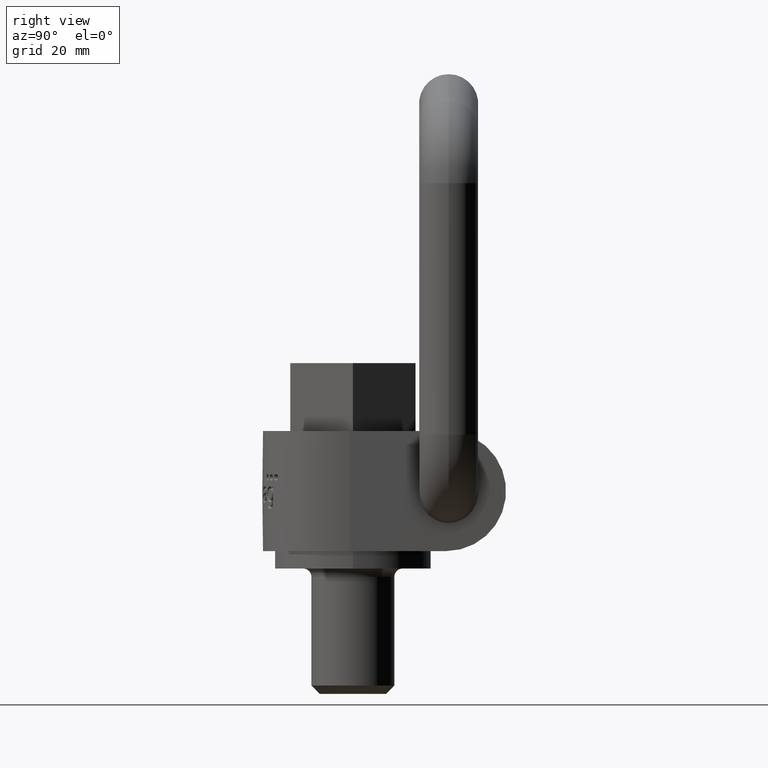
[diagram: clean part render]
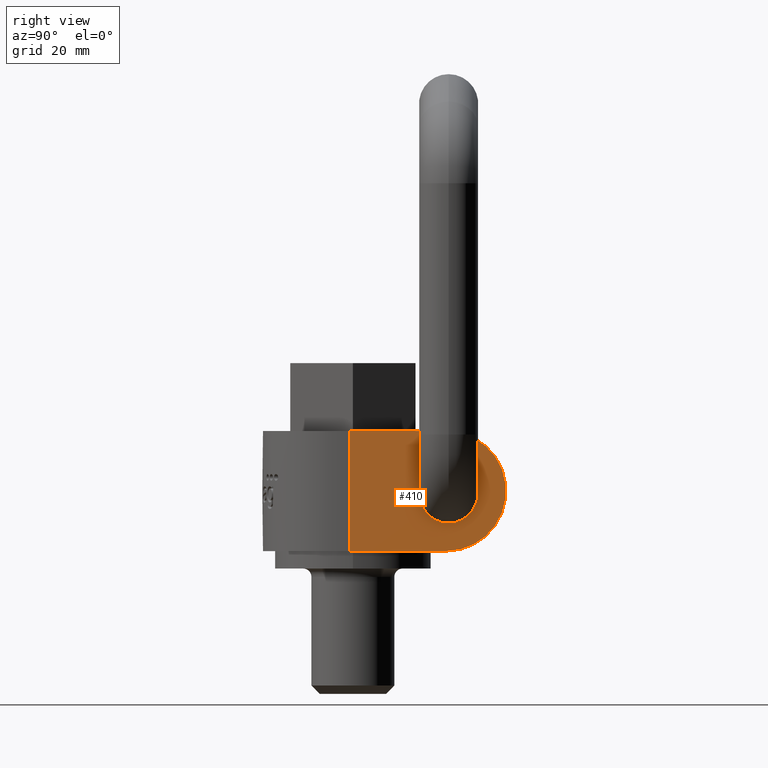
[diagram: same view with one face highlighted and labeled with its STEP entity id]
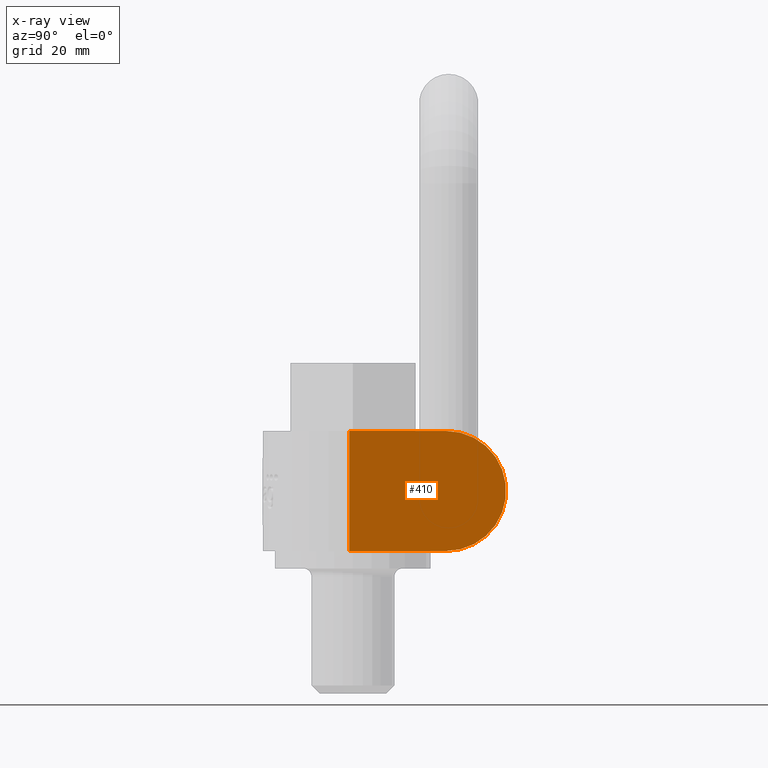
[diagram: x-ray of the same camera — body ghosted, the highlighted face saturated]
A machine part, right view. The second image highlights one B-rep face of the part: STEP entity #410.
The next image is the same camera in x-ray: the body ghosted, the highlighted face saturated — about 0% of this face is hidden behind the body in this view.
In plain terms, the highlighted planar face has unit normal (1, 0, 0).
Its self-contained STEP definition (entity closure, byte-faithful):
#245=FACE_OUTER_BOUND('',#639,.T.);
#349=PLANE('',#2455);
#410=ADVANCED_FACE('',(#245),#349,.T.);
#639=EDGE_LOOP('',(#1207,#1208,#1209,#1210));
#791=LINE('',#3673,#917);
#793=LINE('',#3797,#919);
#796=LINE('',#3805,#922);
#917=VECTOR('',#2614,1.);
#919=VECTOR('',#2620,1.);
#922=VECTOR('',#2627,1.);
#1104=CIRCLE('',#2453,17.255);
#1207=ORIENTED_EDGE('',*,*,#2015,.T.);
#1208=ORIENTED_EDGE('',*,*,#2006,.T.);
#1209=ORIENTED_EDGE('',*,*,#2011,.T.);
#1210=ORIENTED_EDGE('',*,*,#2020,.T.);
#1795=VERTEX_POINT('',#3671);
#1797=VERTEX_POINT('',#3674);
#1801=VERTEX_POINT('',#3798);
#1804=VERTEX_POINT('',#3806);
#2006=EDGE_CURVE('',#1797,#1795,#791,.T.);
#2011=EDGE_CURVE('',#1795,#1801,#793,.T.);
#2015=EDGE_CURVE('',#1804,#1797,#796,.T.);
#2020=EDGE_CURVE('',#1801,#1804,#1104,.T.);
#2453=AXIS2_PLACEMENT_3D('',#3814,#2636,#2637);
#2455=AXIS2_PLACEMENT_3D('',#3816,#2640,#2641);
#2614=DIRECTION('',(0.,0.,-1.));
#2620=DIRECTION('',(0.,1.,1.34667086366912E-16));
#2627=DIRECTION('',(0.,-1.,2.63110964220579E-16));
#2636=DIRECTION('',(1.,0.,0.));
#2637=DIRECTION('',(0.,1.,0.));
#2640=DIRECTION('',(1.,0.,0.));
#2641=DIRECTION('',(0.,0.,-1.));
#3671=CARTESIAN_POINT('',(25.,-1.00000000000001,-2.28620416462628E-16));
#3673=CARTESIAN_POINT('',(25.,-1.00000000000001,-6.93889390390723E-15));
#3674=CARTESIAN_POINT('',(25.,-1.00000000000001,34.51));
#3797=CARTESIAN_POINT('',(25.,-26.,-3.59529757563544E-15));
#3798=CARTESIAN_POINT('',(25.,26.745,3.50771789478736E-15));
#3805=CARTESIAN_POINT('',(25.,26.745,34.51));
#3806=CARTESIAN_POINT('',(25.,26.745,34.51));
#3814=CARTESIAN_POINT('',(25.,26.745,17.255));
#3816=CARTESIAN_POINT('',(25.,26.745,17.255));